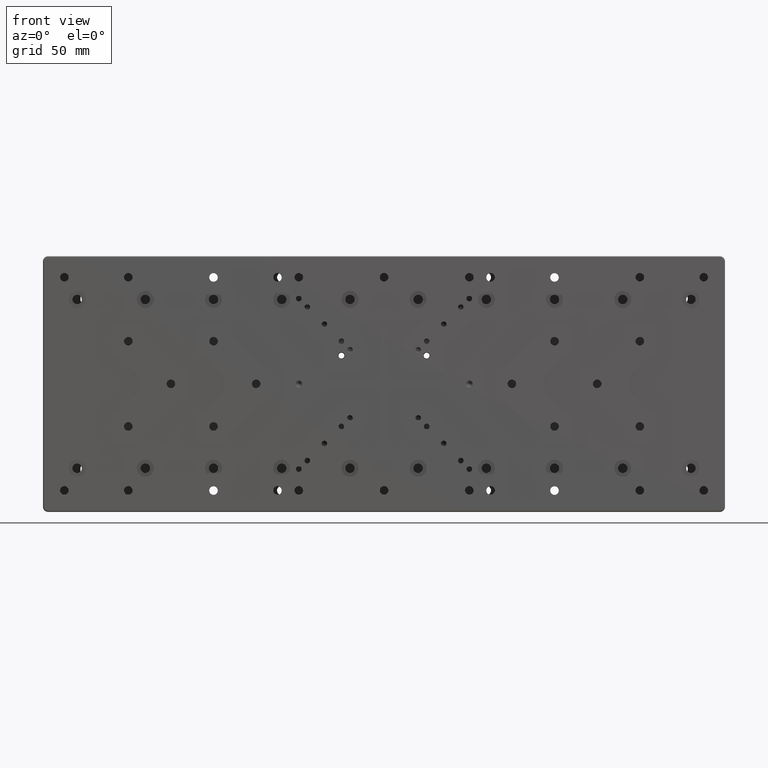
[diagram: clean part render]
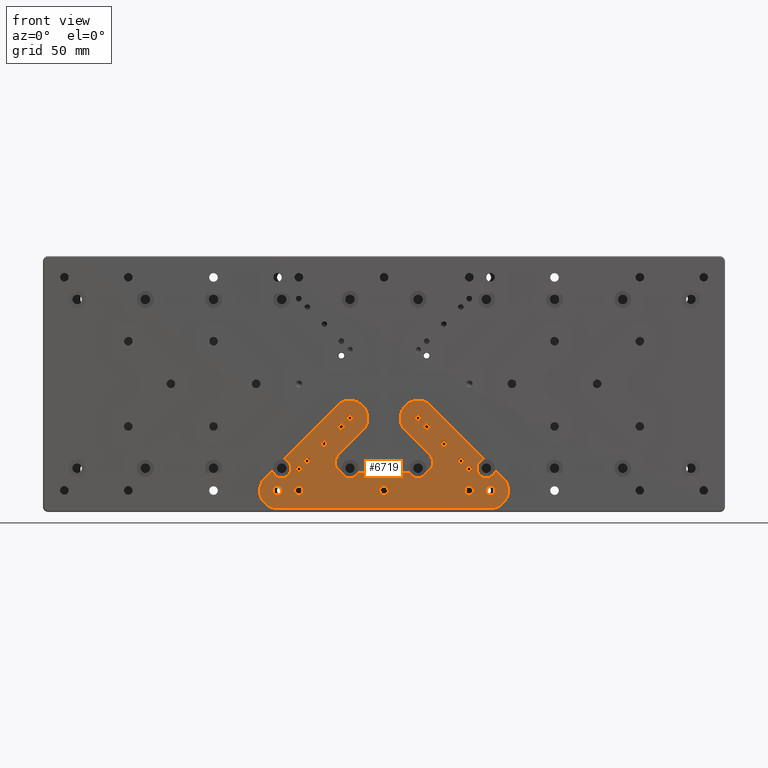
[diagram: same view with one face highlighted and labeled with its STEP entity id]
A machine part, front view. The second image highlights one B-rep face of the part: STEP entity #6719.
In plain terms, the highlighted planar face has unit normal (0, -1, 0).
Its self-contained STEP definition (entity closure, byte-faithful):
#81 = DIRECTION ( 'NONE',  ( 1.000000000000000000, 0.000000000000000000, -0.000000000000000000 ) ) ;
#157 = VERTEX_POINT ( 'NONE', #28497 ) ;
#176 = FACE_BOUND ( 'NONE', #10008, .T. ) ;
#189 = DIRECTION ( 'NONE',  ( -0.000000000000000000, 1.000000000000000000, -0.000000000000000000 ) ) ;
#348 = DIRECTION ( 'NONE',  ( 0.000000000000000000, 0.000000000000000000, -1.000000000000000000 ) ) ;
#525 = VERTEX_POINT ( 'NONE', #19480 ) ;
#575 = DIRECTION ( 'NONE',  ( 0.000000000000000000, 0.000000000000000000, 1.000000000000000000 ) ) ;
#591 = AXIS2_PLACEMENT_3D ( 'NONE', #25446, #34530, #13918 ) ;
#614 = LINE ( 'NONE', #9135, #1737 ) ;
#644 = DIRECTION ( 'NONE',  ( -0.7071067811865975328, 0.000000000000000000, -0.7071067811864976127 ) ) ;
#801 = CARTESIAN_POINT ( 'NONE',  ( 45.00000000000000000, -24.00000000000000000, -46.64999999999999858 ) ) ;
#1062 = EDGE_LOOP ( 'NONE', ( #38505 ) ) ;
#1070 = CARTESIAN_POINT ( 'NONE',  ( -22.66547622083999869, -24.00000000000000000, -52.00000000000000711 ) ) ;
#1091 = VERTEX_POINT ( 'NONE', #4533 ) ;
#1172 = EDGE_LOOP ( 'NONE', ( #16899 ) ) ;
#1205 = CARTESIAN_POINT ( 'NONE',  ( 62.50000000000000000, -24.00000000000000000, -73.00000000000000000 ) ) ;
#1207 = ORIENTED_EDGE ( 'NONE', *, *, #5013, .F. ) ;
#1277 = DIRECTION ( 'NONE',  ( 0.000000000000000000, 0.000000000000000000, 1.000000000000000000 ) ) ;
#1291 = CARTESIAN_POINT ( 'NONE',  ( 14.52277442495000059, -24.00000000000000000, -52.00000000000000711 ) ) ;
#1313 = DIRECTION ( 'NONE',  ( -0.000000000000000000, 1.000000000000000000, -0.000000000000000000 ) ) ;
#1322 = EDGE_CURVE ( 'NONE', #26197, #26197, #18489, .T. ) ;
#1390 = DIRECTION ( 'NONE',  ( 0.000000000000000000, 0.000000000000000000, -1.000000000000000000 ) ) ;
#1396 = DIRECTION ( 'NONE',  ( 0.000000000000000000, 0.000000000000000000, 1.000000000000000000 ) ) ;
#1572 = DIRECTION ( 'NONE',  ( -0.000000000000000000, 1.000000000000000000, -0.000000000000000000 ) ) ;
#1737 = VECTOR ( 'NONE', #24879, 1000.000000000000114 ) ;
#1829 = CARTESIAN_POINT ( 'NONE',  ( 20.00000000000000000, -24.00000000000000000, -20.00000000000000000 ) ) ;
#1901 = EDGE_CURVE ( 'NONE', #22768, #22768, #29524, .T. ) ;
#2076 = VERTEX_POINT ( 'NONE', #23155 ) ;
#2153 = ORIENTED_EDGE ( 'NONE', *, *, #22563, .F. ) ;
#2214 = CARTESIAN_POINT ( 'NONE',  ( -62.50000000000000000, -24.00000000000000000, -62.50000000000000000 ) ) ;
#2397 = DIRECTION ( 'NONE',  ( 0.000000000000000000, 0.000000000000000000, -1.000000000000000000 ) ) ;
#2461 = ORIENTED_EDGE ( 'NONE', *, *, #13903, .T. ) ;
#2524 = CIRCLE ( 'NONE', #25103, 5.499999999999998224 ) ;
#2858 = VECTOR ( 'NONE', #4575, 1000.000000000000114 ) ;
#3137 = VERTEX_POINT ( 'NONE', #22508 ) ;
#3244 = DIRECTION ( 'NONE',  ( -0.000000000000000000, 1.000000000000000000, -0.000000000000000000 ) ) ;
#3290 = DIRECTION ( 'NONE',  ( 0.000000000000000000, 0.000000000000000000, -1.000000000000000000 ) ) ;
#3387 = ORIENTED_EDGE ( 'NONE', *, *, #17351, .T. ) ;
#3486 = EDGE_CURVE ( 'NONE', #5999, #5999, #12836, .T. ) ;
#3742 = AXIS2_PLACEMENT_3D ( 'NONE', #20675, #24134, #35849 ) ;
#3757 = DIRECTION ( 'NONE',  ( 0.7071067811865474617, 0.000000000000000000, 0.7071067811865474617 ) ) ;
#3946 = AXIS2_PLACEMENT_3D ( 'NONE', #16637, #28972, #1277 ) ;
#4008 = FACE_BOUND ( 'NONE', #14615, .T. ) ;
#4009 = CARTESIAN_POINT ( 'NONE',  ( -64.92726524037972524, -24.00000000000000000, -51.94377929669063576 ) ) ;
#4074 = ORIENTED_EDGE ( 'NONE', *, *, #38820, .T. ) ;
#4186 = CARTESIAN_POINT ( 'NONE',  ( -57.55622070330993267, -24.00000000000000000, -44.57273475962141163 ) ) ;
#4218 = EDGE_CURVE ( 'NONE', #24091, #9352, #8291, .T. ) ;
#4382 = DIRECTION ( 'NONE',  ( 0.000000000000000000, 0.000000000000000000, -1.000000000000000000 ) ) ;
#4392 = VERTEX_POINT ( 'NONE', #32067 ) ;
#4485 = VERTEX_POINT ( 'NONE', #26114 ) ;
#4533 = CARTESIAN_POINT ( 'NONE',  ( -50.00000000000000000, -24.00000000000000000, -51.64999999999999858 ) ) ;
#4575 = DIRECTION ( 'NONE',  ( -0.7071067811865975328, 0.000000000000000000, 0.7071067811864976127 ) ) ;
#4708 = AXIS2_PLACEMENT_3D ( 'NONE', #24397, #33899, #348 ) ;
#4806 = AXIS2_PLACEMENT_3D ( 'NONE', #25097, #12591, #3290 ) ;
#4830 = EDGE_CURVE ( 'NONE', #3137, #3137, #14122, .T. ) ;
#4870 = ORIENTED_EDGE ( 'NONE', *, *, #17770, .T. ) ;
#5013 = EDGE_CURVE ( 'NONE', #19632, #19067, #27059, .T. ) ;
#5257 = LINE ( 'NONE', #20993, #19979 ) ;
#5264 = VECTOR ( 'NONE', #10286, 1000.000000000000114 ) ;
#5370 = AXIS2_PLACEMENT_3D ( 'NONE', #29413, #1313, #26179 ) ;
#5586 = EDGE_CURVE ( 'NONE', #32800, #14155, #18052, .T. ) ;
#5904 = CIRCLE ( 'NONE', #7831, 10.49999999999999822 ) ;
#5947 = CARTESIAN_POINT ( 'NONE',  ( 15.36542451341919424, -24.00000000000000000, -52.46153846153950440 ) ) ;
#5999 = VERTEX_POINT ( 'NONE', #26805 ) ;
#6090 = EDGE_CURVE ( 'NONE', #2076, #33130, #34204, .T. ) ;
#6123 = CARTESIAN_POINT ( 'NONE',  ( -20.00000000000000000, -24.00000000000000000, -49.50000000000000000 ) ) ;
#6265 = CARTESIAN_POINT ( 'NONE',  ( 57.11189719482000271, -24.00000000000000000, -43.67686835228000319 ) ) ;
#6329 = CARTESIAN_POINT ( 'NONE',  ( 20.00000000000000000, -24.00000000000000000, -21.64999999999999858 ) ) ;
#6719 = ADVANCED_FACE ( 'NONE', ( #9469, #31893, #19147, #16129, #13113, #7041, #19345, #31685, #4008, #16340, #13294, #25613, #37919, #16521, #176, #24832 ), #10472, .T. ) ;
#6811 = EDGE_CURVE ( 'NONE', #525, #16588, #5904, .T. ) ;
#6848 = ORIENTED_EDGE ( 'NONE', *, *, #5586, .T. ) ;
#6887 = AXIS2_PLACEMENT_3D ( 'NONE', #15189, #3244, #12551 ) ;
#7034 = DIRECTION ( 'NONE',  ( -0.000000000000000000, 1.000000000000000000, -0.000000000000000000 ) ) ;
#7041 = FACE_BOUND ( 'NONE', #23689, .T. ) ;
#7167 = CIRCLE ( 'NONE', #14265, 1.649999999999998579 ) ;
#7584 = DIRECTION ( 'NONE',  ( -0.000000000000000000, 1.000000000000000000, -0.000000000000000000 ) ) ;
#7628 = AXIS2_PLACEMENT_3D ( 'NONE', #39022, #26719, #8135 ) ;
#7831 = AXIS2_PLACEMENT_3D ( 'NONE', #14102, #1572, #7842 ) ;
#7842 = DIRECTION ( 'NONE',  ( 0.000000000000000000, 0.000000000000000000, -1.000000000000000000 ) ) ;
#7881 = AXIS2_PLACEMENT_3D ( 'NONE', #17586, #23636, #29922 ) ;
#8060 = CARTESIAN_POINT ( 'NONE',  ( 69.92462120246273116, -24.00000000000000000, -55.07537879753673593 ) ) ;
#8135 = DIRECTION ( 'NONE',  ( -6.938893903907222067E-15, 0.000000000000000000, -1.000000000000000000 ) ) ;
#8148 = EDGE_LOOP ( 'NONE', ( #8856 ) ) ;
#8291 = CIRCLE ( 'NONE', #30866, 1.000000000000000888 ) ;
#8344 = CIRCLE ( 'NONE', #591, 1.649999999999998579 ) ;
#8362 = EDGE_CURVE ( 'NONE', #23101, #23101, #33098, .T. ) ;
#8407 = EDGE_CURVE ( 'NONE', #1091, #1091, #16339, .T. ) ;
#8408 = ORIENTED_EDGE ( 'NONE', *, *, #14384, .F. ) ;
#8476 = CARTESIAN_POINT ( 'NONE',  ( -14.52277442495000059, -24.00000000000000000, -52.00000000000000711 ) ) ;
#8541 = DIRECTION ( 'NONE',  ( 0.000000000000000000, 0.000000000000000000, -1.000000000000000000 ) ) ;
#8548 = EDGE_CURVE ( 'NONE', #25044, #27822, #26671, .T. ) ;
#8856 = ORIENTED_EDGE ( 'NONE', *, *, #11241, .T. ) ;
#8865 = ORIENTED_EDGE ( 'NONE', *, *, #14037, .T. ) ;
#8883 = EDGE_CURVE ( 'NONE', #13830, #24000, #22899, .T. ) ;
#8979 = ORIENTED_EDGE ( 'NONE', *, *, #36113, .F. ) ;
#9028 = LINE ( 'NONE', #33679, #34773 ) ;
#9135 = CARTESIAN_POINT ( 'NONE',  ( 26.90811690796000022, -24.00000000000000000, -41.75735931287999847 ) ) ;
#9141 = ORIENTED_EDGE ( 'NONE', *, *, #9528, .F. ) ;
#9267 = EDGE_LOOP ( 'NONE', ( #34288 ) ) ;
#9352 = VERTEX_POINT ( 'NONE', #23839 ) ;
#9370 = CARTESIAN_POINT ( 'NONE',  ( -69.92462120246000268, -24.00000000000000000, -55.07537879753999732 ) ) ;
#9469 = FACE_BOUND ( 'NONE', #12948, .T. ) ;
#9488 = DIRECTION ( 'NONE',  ( 0.000000000000000000, 1.000000000000000000, 0.000000000000000000 ) ) ;
#9528 = EDGE_CURVE ( 'NONE', #157, #33130, #32458, .T. ) ;
#9645 = AXIS2_PLACEMENT_3D ( 'NONE', #15528, #24826, #21768 ) ;
#9820 = VECTOR ( 'NONE', #28965, 1000.000000000000000 ) ;
#10008 = EDGE_LOOP ( 'NONE', ( #2461 ) ) ;
#10060 = CARTESIAN_POINT ( 'NONE',  ( -35.00000000000000000, -24.00000000000000000, -35.00000000000000000 ) ) ;
#10158 = AXIS2_PLACEMENT_3D ( 'NONE', #10060, #7034, #10253 ) ;
#10253 = DIRECTION ( 'NONE',  ( 0.000000000000000000, 0.000000000000000000, -1.000000000000000000 ) ) ;
#10286 = DIRECTION ( 'NONE',  ( -0.7071067811865975328, 0.000000000000000000, 0.7071067811864976127 ) ) ;
#10288 = CARTESIAN_POINT ( 'NONE',  ( -25.00000000000000000, -24.00000000000000000, -25.00000000000000000 ) ) ;
#10384 = DIRECTION ( 'NONE',  ( -0.000000000000000000, 1.000000000000000000, -0.000000000000000000 ) ) ;
#10472 = PLANE ( 'NONE',  #16854 ) ;
#10832 = CIRCLE ( 'NONE', #17286, 5.999999999999998224 ) ;
#10862 = DIRECTION ( 'NONE',  ( 0.000000000000000000, -1.000000000000000000, 0.000000000000000000 ) ) ;
#10886 = CARTESIAN_POINT ( 'NONE',  ( -20.00000000000000000, -24.00000000000000000, -20.00000000000000000 ) ) ;
#10941 = AXIS2_PLACEMENT_3D ( 'NONE', #28950, #10960, #31787 ) ;
#10960 = DIRECTION ( 'NONE',  ( -0.000000000000000000, 1.000000000000000000, -0.000000000000000000 ) ) ;
#11046 = CARTESIAN_POINT ( 'NONE',  ( -35.00000000000000000, -24.00000000000000000, -36.64999999999999858 ) ) ;
#11215 = EDGE_LOOP ( 'NONE', ( #22548 ) ) ;
#11241 = EDGE_CURVE ( 'NONE', #22072, #22072, #19437, .T. ) ;
#11266 = DIRECTION ( 'NONE',  ( 0.000000000000000000, 0.000000000000000000, -1.000000000000000000 ) ) ;
#11513 = VERTEX_POINT ( 'NONE', #15561 ) ;
#11615 = CARTESIAN_POINT ( 'NONE',  ( 25.00241530948921209, -24.00000000000000000, -51.78600985810058432 ) ) ;
#11623 = EDGE_CURVE ( 'NONE', #157, #19249, #23186, .T. ) ;
#11708 = DIRECTION ( 'NONE',  ( -0.7071067811865975328, 0.000000000000000000, -0.7071067811864976127 ) ) ;
#12046 = VERTEX_POINT ( 'NONE', #24185 ) ;
#12463 = CIRCLE ( 'NONE', #39559, 1.000000000000000888 ) ;
#12551 = DIRECTION ( 'NONE',  ( 0.000000000000000000, 0.000000000000000000, -1.000000000000000000 ) ) ;
#12591 = DIRECTION ( 'NONE',  ( -0.000000000000000000, 1.000000000000000000, -0.000000000000000000 ) ) ;
#12684 = ORIENTED_EDGE ( 'NONE', *, *, #8407, .T. ) ;
#12836 = CIRCLE ( 'NONE', #28337, 2.500000000000002220 ) ;
#12948 = EDGE_LOOP ( 'NONE', ( #12684 ) ) ;
#13017 = ORIENTED_EDGE ( 'NONE', *, *, #36860, .T. ) ;
#13113 = FACE_BOUND ( 'NONE', #19224, .T. ) ;
#13294 = FACE_BOUND ( 'NONE', #16350, .T. ) ;
#13450 = EDGE_CURVE ( 'NONE', #2076, #34997, #34422, .T. ) ;
#13630 = CARTESIAN_POINT ( 'NONE',  ( 25.00000000000000000, -24.00000000000000000, -26.64999999999999858 ) ) ;
#13731 = DIRECTION ( 'NONE',  ( 0.000000000000000000, 0.000000000000000000, -1.000000000000000000 ) ) ;
#13755 = ORIENTED_EDGE ( 'NONE', *, *, #3486, .T. ) ;
#13830 = VERTEX_POINT ( 'NONE', #1291 ) ;
#13903 = EDGE_CURVE ( 'NONE', #4485, #4485, #25016, .T. ) ;
#13918 = DIRECTION ( 'NONE',  ( 0.000000000000000000, 0.000000000000000000, -1.000000000000000000 ) ) ;
#13996 = DIRECTION ( 'NONE',  ( 0.000000000000000000, 0.000000000000000000, 1.000000000000000000 ) ) ;
#14037 = EDGE_CURVE ( 'NONE', #25991, #25078, #25315, .T. ) ;
#14102 = CARTESIAN_POINT ( 'NONE',  ( -20.00000000000000000, -24.00000000000000000, -20.00000000000000000 ) ) ;
#14121 = CARTESIAN_POINT ( 'NONE',  ( 27.42462120245999913, -24.00000000000000000, -12.57537879754000087 ) ) ;
#14122 = CIRCLE ( 'NONE', #36681, 2.500000000000002220 ) ;
#14155 = VERTEX_POINT ( 'NONE', #5947 ) ;
#14265 = AXIS2_PLACEMENT_3D ( 'NONE', #32584, #17810, #8541 ) ;
#14384 = EDGE_CURVE ( 'NONE', #35330, #24000, #28287, .T. ) ;
#14615 = EDGE_LOOP ( 'NONE', ( #13017 ) ) ;
#14999 = VERTEX_POINT ( 'NONE', #36993 ) ;
#15189 = CARTESIAN_POINT ( 'NONE',  ( 0.000000000000000000, -24.00000000000000000, -62.50000000000000000 ) ) ;
#15233 = CARTESIAN_POINT ( 'NONE',  ( 60.00000000000000000, -24.00000000000000000, -49.50000000000000000 ) ) ;
#15528 = CARTESIAN_POINT ( 'NONE',  ( 62.50000000000000000, -24.00000000000000000, -62.50000000000000000 ) ) ;
#15542 = EDGE_CURVE ( 'NONE', #39945, #31035, #2524, .T. ) ;
#15561 = CARTESIAN_POINT ( 'NONE',  ( -26.90811690795964495, -24.00000000000000000, -41.75735931288035374 ) ) ;
#15637 = CIRCLE ( 'NONE', #21410, 1.649999999999998579 ) ;
#15897 = ORIENTED_EDGE ( 'NONE', *, *, #34667, .T. ) ;
#16129 = FACE_BOUND ( 'NONE', #8148, .T. ) ;
#16339 = CIRCLE ( 'NONE', #5370, 1.649999999999998579 ) ;
#16340 = FACE_BOUND ( 'NONE', #18251, .T. ) ;
#16350 = EDGE_LOOP ( 'NONE', ( #13755 ) ) ;
#16426 = CARTESIAN_POINT ( 'NONE',  ( -25.91194536576000118, -24.00000000000000000, -52.20164801412001054 ) ) ;
#16505 = ORIENTED_EDGE ( 'NONE', *, *, #19776, .T. ) ;
#16521 = FACE_BOUND ( 'NONE', #1172, .T. ) ;
#16572 = ORIENTED_EDGE ( 'NONE', *, *, #23214, .T. ) ;
#16588 = VERTEX_POINT ( 'NONE', #32637 ) ;
#16637 = CARTESIAN_POINT ( 'NONE',  ( 14.52277442495000059, -24.00000000000000000, -53.00000000000000000 ) ) ;
#16729 = CIRCLE ( 'NONE', #10941, 1.000000000000000888 ) ;
#16788 = AXIS2_PLACEMENT_3D ( 'NONE', #15233, #37042, #33406 ) ;
#16854 = AXIS2_PLACEMENT_3D ( 'NONE', #38720, #10862, #26217 ) ;
#16899 = ORIENTED_EDGE ( 'NONE', *, *, #4830, .T. ) ;
#16951 = EDGE_LOOP ( 'NONE', ( #29974 ) ) ;
#16992 = AXIS2_PLACEMENT_3D ( 'NONE', #10886, #29076, #1390 ) ;
#17110 = DIRECTION ( 'NONE',  ( -0.000000000000000000, 1.000000000000000000, -0.000000000000000000 ) ) ;
#17146 = CARTESIAN_POINT ( 'NONE',  ( 25.44816405934569659, -24.00000000000000000, -51.31569829781717118 ) ) ;
#17155 = CARTESIAN_POINT ( 'NONE',  ( -65.82313164772000391, -24.00000000000000000, -52.38810280517999729 ) ) ;
#17270 = EDGE_CURVE ( 'NONE', #18392, #25044, #614, .T. ) ;
#17286 = AXIS2_PLACEMENT_3D ( 'NONE', #21189, #189, #36551 ) ;
#17351 = EDGE_CURVE ( 'NONE', #35330, #9352, #17893, .T. ) ;
#17501 = DIRECTION ( 'NONE',  ( 0.000000000000000000, 0.000000000000000000, -1.000000000000000000 ) ) ;
#17568 = CIRCLE ( 'NONE', #27898, 10.49999999999999467 ) ;
#17585 = CIRCLE ( 'NONE', #4708, 1.649999999999998579 ) ;
#17586 = CARTESIAN_POINT ( 'NONE',  ( -45.00000000000000000, -24.00000000000000000, -45.00000000000000000 ) ) ;
#17770 = EDGE_CURVE ( 'NONE', #24091, #11513, #10832, .T. ) ;
#17810 = DIRECTION ( 'NONE',  ( -0.000000000000000000, 1.000000000000000000, -0.000000000000000000 ) ) ;
#17893 = CIRCLE ( 'NONE', #35305, 5.499999999999998224 ) ;
#18018 = ORIENTED_EDGE ( 'NONE', *, *, #30740, .T. ) ;
#18052 = CIRCLE ( 'NONE', #26423, 5.499999999999998224 ) ;
#18168 = ORIENTED_EDGE ( 'NONE', *, *, #8362, .T. ) ;
#18251 = EDGE_LOOP ( 'NONE', ( #18168 ) ) ;
#18264 = AXIS2_PLACEMENT_3D ( 'NONE', #36465, #21097, #33430 ) ;
#18392 = VERTEX_POINT ( 'NONE', #23384 ) ;
#18489 = CIRCLE ( 'NONE', #6887, 2.500000000000002220 ) ;
#18679 = ORIENTED_EDGE ( 'NONE', *, *, #30266, .F. ) ;
#19067 = VERTEX_POINT ( 'NONE', #1205 ) ;
#19147 = FACE_BOUND ( 'NONE', #22722, .T. ) ;
#19224 = EDGE_LOOP ( 'NONE', ( #35212 ) ) ;
#19249 = VERTEX_POINT ( 'NONE', #31303 ) ;
#19345 = FACE_BOUND ( 'NONE', #11215, .T. ) ;
#19437 = CIRCLE ( 'NONE', #33638, 1.649999999999998579 ) ;
#19480 = CARTESIAN_POINT ( 'NONE',  ( -27.42462120245760815, -24.00000000000000000, -12.57537879754186427 ) ) ;
#19632 = VERTEX_POINT ( 'NONE', #8060 ) ;
#19648 = DIRECTION ( 'NONE',  ( 0.000000000000000000, 1.000000000000000000, 0.000000000000000000 ) ) ;
#19776 = EDGE_CURVE ( 'NONE', #11513, #16588, #9028, .T. ) ;
#19905 = ORIENTED_EDGE ( 'NONE', *, *, #37835, .F. ) ;
#19958 = DIRECTION ( 'NONE',  ( -0.000000000000000000, 1.000000000000000000, -0.000000000000000000 ) ) ;
#19979 = VECTOR ( 'NONE', #11708, 1000.000000000000114 ) ;
#20015 = VERTEX_POINT ( 'NONE', #38476 ) ;
#20119 = CIRCLE ( 'NONE', #7881, 1.649999999999998579 ) ;
#20484 = DIRECTION ( 'NONE',  ( 0.000000000000000000, 0.000000000000000000, 1.000000000000000000 ) ) ;
#20675 = CARTESIAN_POINT ( 'NONE',  ( 62.50000000000000000, -24.00000000000000000, -62.50000000000000000 ) ) ;
#20681 = EDGE_CURVE ( 'NONE', #28494, #28494, #8344, .T. ) ;
#20993 = CARTESIAN_POINT ( 'NONE',  ( -69.92462120246000268, -24.00000000000000000, -55.07537879753999732 ) ) ;
#21050 = CARTESIAN_POINT ( 'NONE',  ( 66.53023842891272466, -24.00000000000000000, -51.68099602398721260 ) ) ;
#21097 = DIRECTION ( 'NONE',  ( -0.000000000000000000, 1.000000000000000000, -0.000000000000000000 ) ) ;
#21189 = CARTESIAN_POINT ( 'NONE',  ( -22.66547622083999869, -24.00000000000000000, -46.00000000000000000 ) ) ;
#21410 = AXIS2_PLACEMENT_3D ( 'NONE', #10288, #19958, #13731 ) ;
#21768 = DIRECTION ( 'NONE',  ( 0.000000000000000000, 0.000000000000000000, -1.000000000000000000 ) ) ;
#22072 = VERTEX_POINT ( 'NONE', #6329 ) ;
#22508 = CARTESIAN_POINT ( 'NONE',  ( -62.50000000000000000, -24.00000000000000000, -65.00000000000000000 ) ) ;
#22548 = ORIENTED_EDGE ( 'NONE', *, *, #35508, .T. ) ;
#22563 = EDGE_CURVE ( 'NONE', #25991, #31035, #35552, .T. ) ;
#22722 = EDGE_LOOP ( 'NONE', ( #39812 ) ) ;
#22768 = VERTEX_POINT ( 'NONE', #11046 ) ;
#22899 = LINE ( 'NONE', #1070, #9820 ) ;
#23101 = VERTEX_POINT ( 'NONE', #13630 ) ;
#23155 = CARTESIAN_POINT ( 'NONE',  ( 64.92726524037858837, -24.00000000000000000, -51.94377929669006733 ) ) ;
#23186 = LINE ( 'NONE', #14121, #5264 ) ;
#23214 = EDGE_CURVE ( 'NONE', #14999, #14999, #38837, .T. ) ;
#23295 = AXIS2_PLACEMENT_3D ( 'NONE', #17155, #38551, #1396 ) ;
#23384 = CARTESIAN_POINT ( 'NONE',  ( 12.57537879754062615, -24.00000000000000000, -27.42462120245937029 ) ) ;
#23395 = AXIS2_PLACEMENT_3D ( 'NONE', #6265, #9488, #575 ) ;
#23515 = CIRCLE ( 'NONE', #4806, 10.49999999999999822 ) ;
#23636 = DIRECTION ( 'NONE',  ( -0.000000000000000000, 1.000000000000000000, -0.000000000000000000 ) ) ;
#23689 = EDGE_LOOP ( 'NONE', ( #33706 ) ) ;
#23762 = ORIENTED_EDGE ( 'NONE', *, *, #4218, .F. ) ;
#23767 = VECTOR ( 'NONE', #81, 1000.000000000000000 ) ;
#23839 = CARTESIAN_POINT ( 'NONE',  ( -25.00241530949166702, -24.00000000000000000, -51.78600985810170698 ) ) ;
#23930 = DIRECTION ( 'NONE',  ( 0.000000000000000000, 1.000000000000000000, 0.000000000000000000 ) ) ;
#23998 = AXIS2_PLACEMENT_3D ( 'NONE', #39107, #26395, #11266 ) ;
#24000 = VERTEX_POINT ( 'NONE', #8476 ) ;
#24091 = VERTEX_POINT ( 'NONE', #34512 ) ;
#24119 = DIRECTION ( 'NONE',  ( 0.000000000000000000, 1.000000000000000000, 0.000000000000000000 ) ) ;
#24134 = DIRECTION ( 'NONE',  ( -0.000000000000000000, 1.000000000000000000, -0.000000000000000000 ) ) ;
#24185 = CARTESIAN_POINT ( 'NONE',  ( -25.00000000000000000, -24.00000000000000000, -26.64999999999999858 ) ) ;
#24316 = ORIENTED_EDGE ( 'NONE', *, *, #28701, .F. ) ;
#24397 = CARTESIAN_POINT ( 'NONE',  ( 50.00000000000000000, -24.00000000000000000, -50.00000000000000000 ) ) ;
#24826 = DIRECTION ( 'NONE',  ( -0.000000000000000000, 1.000000000000000000, -0.000000000000000000 ) ) ;
#24832 = FACE_OUTER_BOUND ( 'NONE', #33735, .T. ) ;
#24879 = DIRECTION ( 'NONE',  ( 0.7071067811865474617, 0.000000000000000000, -0.7071067811865474617 ) ) ;
#24926 = LINE ( 'NONE', #37240, #23767 ) ;
#25016 = CIRCLE ( 'NONE', #3742, 2.500000000000002220 ) ;
#25044 = VERTEX_POINT ( 'NONE', #25707 ) ;
#25078 = VERTEX_POINT ( 'NONE', #28347 ) ;
#25097 = CARTESIAN_POINT ( 'NONE',  ( 20.00000000000000000, -24.00000000000000000, -20.00000000000000000 ) ) ;
#25103 = AXIS2_PLACEMENT_3D ( 'NONE', #33240, #23930, #20484 ) ;
#25190 = EDGE_CURVE ( 'NONE', #25476, #25476, #7167, .T. ) ;
#25315 = LINE ( 'NONE', #9370, #32783 ) ;
#25446 = CARTESIAN_POINT ( 'NONE',  ( 45.00000000000000000, -24.00000000000000000, -45.00000000000000000 ) ) ;
#25476 = VERTEX_POINT ( 'NONE', #31144 ) ;
#25492 = CARTESIAN_POINT ( 'NONE',  ( -15.36542451341978577, -24.00000000000000000, -52.46153846153912070 ) ) ;
#25613 = FACE_BOUND ( 'NONE', #9267, .T. ) ;
#25707 = CARTESIAN_POINT ( 'NONE',  ( 26.90811690796000022, -24.00000000000000000, -41.75735931287999847 ) ) ;
#25794 = CARTESIAN_POINT ( 'NONE',  ( 0.000000000000000000, -24.00000000000000000, -65.00000000000000000 ) ) ;
#25939 = CARTESIAN_POINT ( 'NONE',  ( 57.55622070330936424, -24.00000000000000000, -44.57273475962027476 ) ) ;
#25991 = VERTEX_POINT ( 'NONE', #31751 ) ;
#26114 = CARTESIAN_POINT ( 'NONE',  ( 62.50000000000000000, -24.00000000000000000, -65.00000000000000000 ) ) ;
#26179 = DIRECTION ( 'NONE',  ( 0.000000000000000000, 0.000000000000000000, -1.000000000000000000 ) ) ;
#26197 = VERTEX_POINT ( 'NONE', #25794 ) ;
#26217 = DIRECTION ( 'NONE',  ( 0.000000000000000000, -0.000000000000000000, -1.000000000000000000 ) ) ;
#26395 = DIRECTION ( 'NONE',  ( -0.000000000000000000, 1.000000000000000000, -0.000000000000000000 ) ) ;
#26423 = AXIS2_PLACEMENT_3D ( 'NONE', #35838, #24119, #36230 ) ;
#26596 = LINE ( 'NONE', #34873, #2858 ) ;
#26671 = CIRCLE ( 'NONE', #18264, 5.999999999999998224 ) ;
#26685 = EDGE_CURVE ( 'NONE', #35652, #25078, #17568, .T. ) ;
#26719 = DIRECTION ( 'NONE',  ( -0.000000000000000000, 1.000000000000000000, -0.000000000000000000 ) ) ;
#26805 = CARTESIAN_POINT ( 'NONE',  ( -50.00000000000000000, -24.00000000000000000, -65.00000000000000000 ) ) ;
#26863 = ORIENTED_EDGE ( 'NONE', *, *, #26685, .F. ) ;
#27059 = CIRCLE ( 'NONE', #9645, 10.49999999999999467 ) ;
#27593 = ORIENTED_EDGE ( 'NONE', *, *, #17270, .T. ) ;
#27711 = DIRECTION ( 'NONE',  ( 0.000000000000000000, 0.000000000000000000, 1.000000000000000000 ) ) ;
#27804 = EDGE_CURVE ( 'NONE', #29494, #29494, #39566, .T. ) ;
#27822 = VERTEX_POINT ( 'NONE', #17146 ) ;
#27898 = AXIS2_PLACEMENT_3D ( 'NONE', #33104, #39135, #33483 ) ;
#28287 = CIRCLE ( 'NONE', #7628, 1.000000000000000888 ) ;
#28337 = AXIS2_PLACEMENT_3D ( 'NONE', #38503, #17110, #4382 ) ;
#28347 = CARTESIAN_POINT ( 'NONE',  ( -69.92462120245973267, -24.00000000000000000, -55.07537879753973442 ) ) ;
#28494 = VERTEX_POINT ( 'NONE', #801 ) ;
#28497 = CARTESIAN_POINT ( 'NONE',  ( 57.81900397600931996, -24.00000000000000000, -42.96976157109062910 ) ) ;
#28701 = EDGE_CURVE ( 'NONE', #18392, #19249, #23515, .T. ) ;
#28915 = DIRECTION ( 'NONE',  ( -0.000000000000000000, 1.000000000000000000, -0.000000000000000000 ) ) ;
#28950 = CARTESIAN_POINT ( 'NONE',  ( 25.91194536576000118, -24.00000000000000355, -52.20164801412001054 ) ) ;
#28965 = DIRECTION ( 'NONE',  ( -1.000000000000000000, 0.000000000000000000, -0.000000000000000000 ) ) ;
#28972 = DIRECTION ( 'NONE',  ( 0.000000000000000000, 1.000000000000000000, 0.000000000000000000 ) ) ;
#29076 = DIRECTION ( 'NONE',  ( -0.000000000000000000, 1.000000000000000000, -0.000000000000000000 ) ) ;
#29221 = CARTESIAN_POINT ( 'NONE',  ( 25.00000000000000000, -24.00000000000000000, -25.00000000000000000 ) ) ;
#29413 = CARTESIAN_POINT ( 'NONE',  ( -50.00000000000000000, -24.00000000000000000, -50.00000000000000000 ) ) ;
#29494 = VERTEX_POINT ( 'NONE', #35345 ) ;
#29524 = CIRCLE ( 'NONE', #10158, 1.649999999999998579 ) ;
#29722 = DIRECTION ( 'NONE',  ( 0.000000000000000000, 0.000000000000000000, -1.000000000000000000 ) ) ;
#29922 = DIRECTION ( 'NONE',  ( 0.000000000000000000, 0.000000000000000000, -1.000000000000000000 ) ) ;
#29974 = ORIENTED_EDGE ( 'NONE', *, *, #37183, .T. ) ;
#30266 = EDGE_CURVE ( 'NONE', #32800, #27822, #16729, .T. ) ;
#30427 = CIRCLE ( 'NONE', #3946, 1.000000000000000888 ) ;
#30634 = DIRECTION ( 'NONE',  ( -0.000000000000000000, 1.000000000000000000, -0.000000000000000000 ) ) ;
#30740 = EDGE_CURVE ( 'NONE', #525, #20015, #5257, .T. ) ;
#30866 = AXIS2_PLACEMENT_3D ( 'NONE', #16426, #19648, #13996 ) ;
#31035 = VERTEX_POINT ( 'NONE', #4009 ) ;
#31144 = CARTESIAN_POINT ( 'NONE',  ( 35.00000000000000000, -24.00000000000000000, -36.64999999999999858 ) ) ;
#31303 = CARTESIAN_POINT ( 'NONE',  ( 27.42462120245973978, -24.00000000000000000, -12.57537879753973975 ) ) ;
#31685 = FACE_BOUND ( 'NONE', #1062, .T. ) ;
#31751 = CARTESIAN_POINT ( 'NONE',  ( -66.53023842890813455, -24.00000000000000000, -51.68099602399181691 ) ) ;
#31754 = CARTESIAN_POINT ( 'NONE',  ( -57.11189719482000271, -24.00000000000000355, -43.67686835228000319 ) ) ;
#31787 = DIRECTION ( 'NONE',  ( 6.938893903907222067E-15, 0.000000000000000000, -1.000000000000000000 ) ) ;
#31893 = FACE_BOUND ( 'NONE', #16951, .T. ) ;
#32067 = CARTESIAN_POINT ( 'NONE',  ( -45.00000000000000000, -24.00000000000000000, -46.64999999999999858 ) ) ;
#32249 = ORIENTED_EDGE ( 'NONE', *, *, #11623, .T. ) ;
#32458 = CIRCLE ( 'NONE', #23395, 1.000000000000000888 ) ;
#32463 = AXIS2_PLACEMENT_3D ( 'NONE', #29221, #7584, #35070 ) ;
#32584 = CARTESIAN_POINT ( 'NONE',  ( 35.00000000000000000, -24.00000000000000000, -35.00000000000000000 ) ) ;
#32637 = CARTESIAN_POINT ( 'NONE',  ( -12.57537879754000087, -24.00000000000000000, -27.42462120245999913 ) ) ;
#32783 = VECTOR ( 'NONE', #644, 1000.000000000000114 ) ;
#32800 = VERTEX_POINT ( 'NONE', #11615 ) ;
#32899 = ORIENTED_EDGE ( 'NONE', *, *, #13450, .F. ) ;
#33079 = CARTESIAN_POINT ( 'NONE',  ( 50.00000000000000000, -24.00000000000000000, -51.64999999999999858 ) ) ;
#33098 = CIRCLE ( 'NONE', #32463, 1.649999999999998579 ) ;
#33104 = CARTESIAN_POINT ( 'NONE',  ( -62.50000000000000000, -24.00000000000000000, -62.50000000000000000 ) ) ;
#33128 = DIRECTION ( 'NONE',  ( -0.000000000000000000, 1.000000000000000000, -0.000000000000000000 ) ) ;
#33130 = VERTEX_POINT ( 'NONE', #25939 ) ;
#33240 = CARTESIAN_POINT ( 'NONE',  ( -60.00000000000000000, -24.00000000000000000, -49.50000000000000000 ) ) ;
#33399 = ORIENTED_EDGE ( 'NONE', *, *, #6090, .T. ) ;
#33406 = DIRECTION ( 'NONE',  ( 0.000000000000000000, 0.000000000000000000, 1.000000000000000000 ) ) ;
#33430 = DIRECTION ( 'NONE',  ( 0.000000000000000000, 0.000000000000000000, -1.000000000000000000 ) ) ;
#33483 = DIRECTION ( 'NONE',  ( 0.000000000000000000, 0.000000000000000000, -1.000000000000000000 ) ) ;
#33638 = AXIS2_PLACEMENT_3D ( 'NONE', #1829, #10384, #29722 ) ;
#33679 = CARTESIAN_POINT ( 'NONE',  ( -12.57537879754000087, -24.00000000000000000, -27.42462120245999913 ) ) ;
#33706 = ORIENTED_EDGE ( 'NONE', *, *, #25190, .T. ) ;
#33735 = EDGE_LOOP ( 'NONE', ( #4074, #32899, #33399, #9141, #32249, #24316, #27593, #37156, #18679, #6848, #8979, #36515, #8408, #3387, #23762, #4870, #16505, #37121, #18018, #19905, #36221, #2153, #8865, #26863, #15897, #1207 ) ) ;
#33899 = DIRECTION ( 'NONE',  ( -0.000000000000000000, 1.000000000000000000, -0.000000000000000000 ) ) ;
#34204 = CIRCLE ( 'NONE', #16788, 5.499999999999998224 ) ;
#34288 = ORIENTED_EDGE ( 'NONE', *, *, #1322, .T. ) ;
#34290 = EDGE_LOOP ( 'NONE', ( #16572 ) ) ;
#34422 = CIRCLE ( 'NONE', #36348, 1.000000000000000888 ) ;
#34512 = CARTESIAN_POINT ( 'NONE',  ( -25.44816405934496828, -24.00000000000000000, -51.31569829781579273 ) ) ;
#34530 = DIRECTION ( 'NONE',  ( -0.000000000000000000, 1.000000000000000000, -0.000000000000000000 ) ) ;
#34667 = EDGE_CURVE ( 'NONE', #35652, #19067, #24926, .T. ) ;
#34773 = VECTOR ( 'NONE', #3757, 1000.000000000000114 ) ;
#34873 = CARTESIAN_POINT ( 'NONE',  ( 27.42462120245999913, -24.00000000000000000, -12.57537879754000087 ) ) ;
#34922 = CARTESIAN_POINT ( 'NONE',  ( -62.50000000000000000, -24.00000000000000000, -73.00000000000000000 ) ) ;
#34997 = VERTEX_POINT ( 'NONE', #21050 ) ;
#35070 = DIRECTION ( 'NONE',  ( 0.000000000000000000, 0.000000000000000000, -1.000000000000000000 ) ) ;
#35212 = ORIENTED_EDGE ( 'NONE', *, *, #1901, .T. ) ;
#35305 = AXIS2_PLACEMENT_3D ( 'NONE', #6123, #37601, #27711 ) ;
#35330 = VERTEX_POINT ( 'NONE', #25492 ) ;
#35345 = CARTESIAN_POINT ( 'NONE',  ( -20.00000000000000000, -24.00000000000000000, -21.64999999999999858 ) ) ;
#35508 = EDGE_CURVE ( 'NONE', #4392, #4392, #20119, .T. ) ;
#35552 = CIRCLE ( 'NONE', #23295, 1.000000000000000888 ) ;
#35652 = VERTEX_POINT ( 'NONE', #34922 ) ;
#35838 = CARTESIAN_POINT ( 'NONE',  ( 20.00000000000000000, -24.00000000000000000, -49.50000000000000000 ) ) ;
#35849 = DIRECTION ( 'NONE',  ( 0.000000000000000000, 0.000000000000000000, -1.000000000000000000 ) ) ;
#36092 = VERTEX_POINT ( 'NONE', #33079 ) ;
#36113 = EDGE_CURVE ( 'NONE', #13830, #14155, #30427, .T. ) ;
#36221 = ORIENTED_EDGE ( 'NONE', *, *, #15542, .T. ) ;
#36230 = DIRECTION ( 'NONE',  ( 0.000000000000000000, 0.000000000000000000, 1.000000000000000000 ) ) ;
#36348 = AXIS2_PLACEMENT_3D ( 'NONE', #39705, #30634, #17501 ) ;
#36465 = CARTESIAN_POINT ( 'NONE',  ( 22.66547622083999869, -24.00000000000000000, -46.00000000000000000 ) ) ;
#36515 = ORIENTED_EDGE ( 'NONE', *, *, #8883, .T. ) ;
#36551 = DIRECTION ( 'NONE',  ( 1.156482317317871725E-15, 0.000000000000000000, -1.000000000000000000 ) ) ;
#36681 = AXIS2_PLACEMENT_3D ( 'NONE', #2214, #33128, #2397 ) ;
#36860 = EDGE_CURVE ( 'NONE', #12046, #12046, #15637, .T. ) ;
#36993 = CARTESIAN_POINT ( 'NONE',  ( 50.00000000000000000, -24.00000000000000000, -65.00000000000000000 ) ) ;
#37042 = DIRECTION ( 'NONE',  ( 0.000000000000000000, 1.000000000000000000, 0.000000000000000000 ) ) ;
#37121 = ORIENTED_EDGE ( 'NONE', *, *, #6811, .F. ) ;
#37156 = ORIENTED_EDGE ( 'NONE', *, *, #8548, .T. ) ;
#37183 = EDGE_CURVE ( 'NONE', #36092, #36092, #17585, .T. ) ;
#37240 = CARTESIAN_POINT ( 'NONE',  ( 62.50000000000000000, -24.00000000000000000, -73.00000000000000000 ) ) ;
#37601 = DIRECTION ( 'NONE',  ( 0.000000000000000000, 1.000000000000000000, 0.000000000000000000 ) ) ;
#37835 = EDGE_CURVE ( 'NONE', #39945, #20015, #12463, .T. ) ;
#37919 = FACE_BOUND ( 'NONE', #34290, .T. ) ;
#37982 = DIRECTION ( 'NONE',  ( 0.000000000000000000, 0.000000000000000000, -1.000000000000000000 ) ) ;
#38476 = CARTESIAN_POINT ( 'NONE',  ( -57.81900397600912100, -24.00000000000000000, -42.96976157109082806 ) ) ;
#38503 = CARTESIAN_POINT ( 'NONE',  ( -50.00000000000000000, -24.00000000000000000, -62.50000000000000000 ) ) ;
#38505 = ORIENTED_EDGE ( 'NONE', *, *, #20681, .T. ) ;
#38551 = DIRECTION ( 'NONE',  ( 0.000000000000000000, 1.000000000000000000, 0.000000000000000000 ) ) ;
#38720 = CARTESIAN_POINT ( 'NONE',  ( -200.0000000000000000, -24.00000000000000000, 75.00000000000000000 ) ) ;
#38820 = EDGE_CURVE ( 'NONE', #19632, #34997, #26596, .T. ) ;
#38837 = CIRCLE ( 'NONE', #23998, 2.500000000000002220 ) ;
#39022 = CARTESIAN_POINT ( 'NONE',  ( -14.52277442495000059, -24.00000000000000355, -53.00000000000000000 ) ) ;
#39107 = CARTESIAN_POINT ( 'NONE',  ( 50.00000000000000000, -24.00000000000000000, -62.50000000000000000 ) ) ;
#39135 = DIRECTION ( 'NONE',  ( -0.000000000000000000, 1.000000000000000000, -0.000000000000000000 ) ) ;
#39559 = AXIS2_PLACEMENT_3D ( 'NONE', #31754, #28915, #37982 ) ;
#39566 = CIRCLE ( 'NONE', #16992, 1.649999999999998579 ) ;
#39705 = CARTESIAN_POINT ( 'NONE',  ( 65.82313164772000391, -24.00000000000000355, -52.38810280517999729 ) ) ;
#39812 = ORIENTED_EDGE ( 'NONE', *, *, #27804, .T. ) ;
#39945 = VERTEX_POINT ( 'NONE', #4186 ) ;